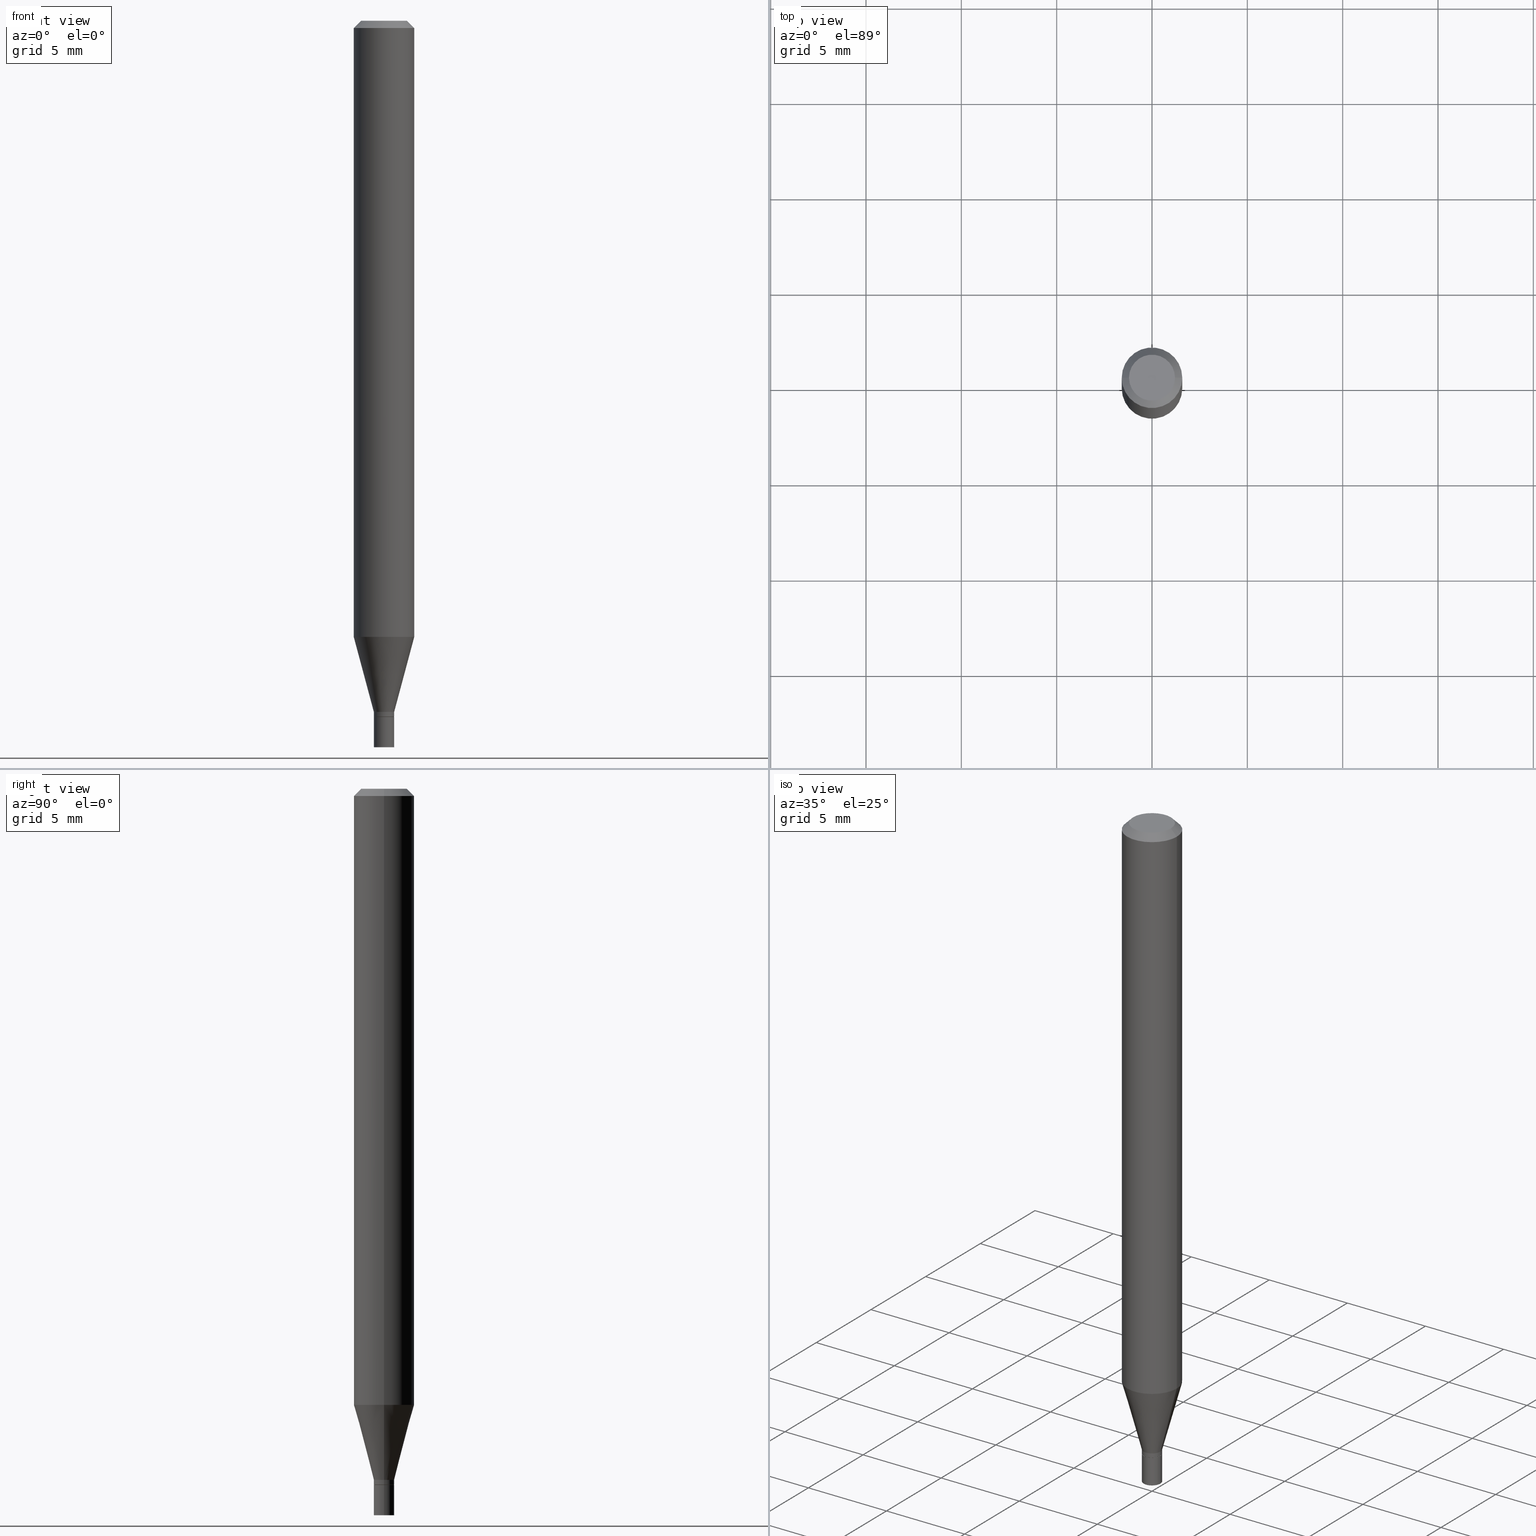
[diagram: canonical four-view strip — front | top / right | iso, engineering-drawing reading convention]
A machine part, canonical four-view strip (front | top / right | iso — engineering-drawing reading convention). The complete STEP part file that produces these views, byte-faithful:
ISO-10303-21;
HEADER;
FILE_DESCRIPTION (( 'STEP AP203' ),
    '1' );
FILE_NAME ('02403.STEP',
    '2024-03-18T20:25:10',
    ( '' ),
    ( '' ),
    'SwSTEP 2.0',
    'SolidWorks 2023',
    '' );
FILE_SCHEMA (( 'CONFIG_CONTROL_DESIGN' ));
ENDSEC;

DATA;
#1 = DIRECTION ( 'NONE',  ( -2.445468806185136597E-29, 3.491481338843145583E-15, 1.000000000000000000 ) ) ;
#2 = DIRECTION ( 'NONE',  ( -2.445468806185136597E-29, 3.491481338843145583E-15, 1.000000000000000000 ) ) ;
#3 = DIRECTION ( 'NONE',  ( 1.000000000000000000, -6.982962677686284854E-15, 0.000000000000000000 ) ) ;
#4 = ORIENTED_EDGE ( 'NONE', *, *, #279, .F. ) ;
#5 = CARTESIAN_POINT ( 'NONE',  ( -0.02099999999999992498, -4.415311774031822362E-15, -1.427000000000000046 ) ) ;
#6 = AXIS2_PLACEMENT_3D ( 'NONE', #375, #384, #119 ) ;
#7 = DIRECTION ( 'NONE',  ( -2.445468806185136597E-29, 3.491481338843145583E-15, 1.000000000000000000 ) ) ;
#8 = APPROVAL ( #242, 'UNSPECIFIED' ) ;
#9 = APPROVAL_STATUS ( 'not_yet_approved' ) ;
#10 = CALENDAR_DATE ( 2024, 18, 3 ) ;
#11 = VERTEX_POINT ( 'NONE', #418 ) ;
#12 = COORDINATED_UNIVERSAL_TIME_OFFSET ( 5, 0, .BEHIND. ) ;
#13 = ORIENTED_EDGE ( 'NONE', *, *, #131, .F. ) ;
#14 = VECTOR ( 'NONE', #454, 39.37007874015748143 ) ;
#15 = EDGE_LOOP ( 'NONE', ( #147, #25 ) ) ;
#16 = LINE ( 'NONE', #212, #347 ) ;
#17 = DIRECTION ( 'NONE',  ( 2.445468806185136597E-29, -3.491481338843145583E-15, -1.000000000000000000 ) ) ;
#18 = DIRECTION ( 'NONE',  ( 1.000000000000000000, -6.982962677686265922E-15, 4.876176775795935793E-29 ) ) ;
#19 = ORIENTED_EDGE ( 'NONE', *, *, #42, .F. ) ;
#20 = APPROVAL ( #448, 'UNSPECIFIED' ) ;
#21 = CARTESIAN_POINT ( 'NONE',  ( 3.512915940084948815E-29, -5.015512943248179335E-15, -1.436500000000000110 ) ) ;
#22 = ADVANCED_FACE ( 'NONE', ( #155 ), #456, .T. ) ;
#23 = CARTESIAN_POINT ( 'NONE',  ( 3.512915940084948815E-29, -5.015512943248179335E-15, -1.436500000000000110 ) ) ;
#24 = ORGANIZATION ( 'UNSPECIFIED', 'UNSPECIFIED', '' ) ;
#25 = ORIENTED_EDGE ( 'NONE', *, *, #415, .T. ) ;
#26 = ORIENTED_EDGE ( 'NONE', *, *, #300, .T. ) ;
#27 = ORIENTED_EDGE ( 'NONE', *, *, #432, .F. ) ;
#28 = EDGE_CURVE ( 'NONE', #223, #11, #66, .T. ) ;
#29 = CARTESIAN_POINT ( 'NONE',  ( 3.576687321579069994E-29, -5.368277968210015545E-15, -1.500000000000000222 ) ) ;
#30 = ORIENTED_EDGE ( 'NONE', *, *, #387, .T. ) ;
#31 = DIRECTION ( 'NONE',  ( 1.000000000000000000, -6.982962677686265922E-15, 4.876176775795935793E-29 ) ) ;
#32 = DIRECTION ( 'NONE',  ( 1.000000000000000000, -6.982962677686261977E-15, 0.000000000000000000 ) ) ;
#33 = AXIS2_PLACEMENT_3D ( 'NONE', #73, #129, #31 ) ;
#34 = CARTESIAN_POINT ( 'NONE',  ( 3.489683986426190072E-29, -4.982343870529169189E-15, -1.427000000000000046 ) ) ;
#35 = AXIS2_PLACEMENT_3D ( 'NONE', #355, #284, #61 ) ;
#36 = DIRECTION ( 'NONE',  ( 1.000000000000000000, -6.982962677686261977E-15, 0.000000000000000000 ) ) ;
#37 = DATE_AND_TIME ( #353, #53 ) ;
#38 = ADVANCED_FACE ( 'NONE', ( #240 ), #350, .T. ) ;
#39 = DIRECTION ( 'NONE',  ( -2.445468806185136597E-29, 3.491481338843145583E-15, 1.000000000000000000 ) ) ;
#40 = LINE ( 'NONE', #317, #140 ) ;
#41 = LENGTH_MEASURE_WITH_UNIT ( LENGTH_MEASURE( 0.02539999999999999897 ), #430 );
#42 = EDGE_CURVE ( 'NONE', #72, #320, #435, .T. ) ;
#43 = ORIENTED_EDGE ( 'NONE', *, *, #171, .T. ) ;
#44 = DIRECTION ( 'NONE',  ( -1.000000000000000000, 6.982962677686265922E-15, -4.876176775795935793E-29 ) ) ;
#45 = AXIS2_PLACEMENT_3D ( 'NONE', #410, #445, #47 ) ;
#46 = ORIENTED_EDGE ( 'NONE', *, *, #28, .F. ) ;
#47 = DIRECTION ( 'NONE',  ( 1.000000000000000000, -6.982962677686265922E-15, 0.000000000000000000 ) ) ;
#48 = EDGE_LOOP ( 'NONE', ( #90, #273, #182, #27 ) ) ;
#49 = EDGE_CURVE ( 'NONE', #377, #144, #199, .T. ) ;
#50 = EDGE_LOOP ( 'NONE', ( #260, #238, #362, #426 ) ) ;
#51 = CC_DESIGN_PERSON_AND_ORGANIZATION_ASSIGNMENT ( #463, #241, ( #440 ) ) ;
#52 = FACE_OUTER_BOUND ( 'NONE', #263, .T. ) ;
#53 = LOCAL_TIME ( 16, 25, 10.00000000000000000, #67 ) ;
#54 = CIRCLE ( 'NONE', #363, 0.02100000000000000477 ) ;
#55 = DIRECTION ( 'NONE',  ( -2.445468806185136597E-29, 3.491481338843145583E-15, 1.000000000000000000 ) ) ;
#56 = EDGE_LOOP ( 'NONE', ( #358, #267, #296, #46 ) ) ;
#57 = EDGE_LOOP ( 'NONE', ( #152, #79, #378, #217 ) ) ;
#58 = DIRECTION ( 'NONE',  ( 1.000000000000000000, -6.982962677686265922E-15, 0.000000000000000000 ) ) ;
#59 = VERTEX_POINT ( 'NONE', #309 ) ;
#60 = FACE_OUTER_BOUND ( 'NONE', #427, .T. ) ;
#61 = DIRECTION ( 'NONE',  ( 1.000000000000000000, -6.982962677686284854E-15, 0.000000000000000000 ) ) ;
#62 = PRODUCT ( '02403', '02403', '', ( #285 ) ) ;
#63 = CC_DESIGN_APPROVAL ( #8, ( #185 ) ) ;
#64 = CARTESIAN_POINT ( 'NONE',  ( 0.000000000000000000, 0.000000000000000000, 0.000000000000000000 ) ) ;
#65 = ADVANCED_FACE ( 'NONE', ( #460 ), #97, .T. ) ;
#66 = CIRCLE ( 'NONE', #165, 0.02099999999999992498 ) ;
#67 = COORDINATED_UNIVERSAL_TIME_OFFSET ( 5, 0, .BEHIND. ) ;
#68 = AXIS2_PLACEMENT_3D ( 'NONE', #417, #153, #302 ) ;
#69 = UNCERTAINTY_MEASURE_WITH_UNIT (LENGTH_MEASURE( 1.000000000000000082E-05 ), #462, 'distance_accuracy_value', 'NONE');
#70 = DIRECTION ( 'NONE',  ( -1.000000000000000000, 6.982962677686266711E-15, 0.000000000000000000 ) ) ;
#71 = PERSON_AND_ORGANIZATION_ROLE ( 'creator' ) ;
#72 = VERTEX_POINT ( 'NONE', #357 ) ;
#73 = CARTESIAN_POINT ( 'NONE',  ( 3.514138674488041056E-29, -5.017258683917600838E-15, -1.437000000000000055 ) ) ;
#74 = CALENDAR_DATE ( 2024, 18, 3 ) ;
#75 = VERTEX_POINT ( 'NONE', #168 ) ;
#76 = DATE_TIME_ROLE ( 'classification_date' ) ;
#77 = EDGE_LOOP ( 'NONE', ( #139, #286, #19, #13 ) ) ;
#78 = CARTESIAN_POINT ( 'NONE',  ( 1.466422162314467535E-16, 0.02099999999999498795, -1.437000000000000055 ) ) ;
#79 = ORIENTED_EDGE ( 'NONE', *, *, #161, .T. ) ;
#80 = ORIENTED_EDGE ( 'NONE', *, *, #259, .T. ) ;
#81 =( GEOMETRIC_REPRESENTATION_CONTEXT ( 3 ) GLOBAL_UNCERTAINTY_ASSIGNED_CONTEXT ( ( #69 ) ) GLOBAL_UNIT_ASSIGNED_CONTEXT ( ( #462, #177, #359 ) ) REPRESENTATION_CONTEXT ( 'NONE', 'WORKASPACE' ) );
#82 = AXIS2_PLACEMENT_3D ( 'NONE', #64, #39, #245 ) ;
#83 = FACE_OUTER_BOUND ( 'NONE', #50, .T. ) ;
#84 = CARTESIAN_POINT ( 'NONE',  ( 3.514138674488041056E-29, -5.017258683917600838E-15, -1.437000000000000055 ) ) ;
#85 = FACE_OUTER_BOUND ( 'NONE', #125, .T. ) ;
#86 = CLOSED_SHELL ( 'NONE', ( #22, #224, #444, #393, #351, #402, #65, #38, #231, #195, #150, #443 ) ) ;
#87 = EDGE_CURVE ( 'NONE', #246, #104, #54, .T. ) ;
#88 = APPROVAL_PERSON_ORGANIZATION ( #278, #8, #396 ) ;
#89 = DIRECTION ( 'NONE',  ( 1.000000000000000000, -6.982962677686262766E-15, 0.000000000000000000 ) ) ;
#90 = ORIENTED_EDGE ( 'NONE', *, *, #367, .F. ) ;
#91 = ORIENTED_EDGE ( 'NONE', *, *, #319, .T. ) ;
#92 = CARTESIAN_POINT ( 'NONE',  ( -0.02100000000000000477, 1.492139745096210730E-16, -1.032976368953530510E-30 ) ) ;
#93 = ORIENTED_EDGE ( 'NONE', *, *, #87, .T. ) ;
#94 = CONICAL_SURFACE ( 'NONE', #6, 0.02099999999999992498, 0.2617993877991504625 ) ;
#95 = AXIS2_PLACEMENT_3D ( 'NONE', #313, #169, #437 ) ;
#96 = PRODUCT_DEFINITION_SHAPE ( 'NONE', 'NONE',  #185 ) ;
#97 = CYLINDRICAL_SURFACE ( 'NONE', #82, 0.06250000000000000000 ) ;
#98 = CARTESIAN_POINT ( 'NONE',  ( 0.000000000000000000, 0.000000000000000000, 0.000000000000000000 ) ) ;
#99 = ORIENTED_EDGE ( 'NONE', *, *, #216, .T. ) ;
#100 = AXIS2_PLACEMENT_3D ( 'NONE', #84, #227, #149 ) ;
#101 = CARTESIAN_POINT ( 'NONE',  ( 3.514138674488041056E-29, -5.017258683917600838E-15, -1.437000000000000055 ) ) ;
#102 = APPROVAL_DATE_TIME ( #37, #8 ) ;
#103 = CARTESIAN_POINT ( 'NONE',  ( 0.02100000000000000477, -5.383864224496130787E-15, -1.500000000000000222 ) ) ;
#104 = VERTEX_POINT ( 'NONE', #103 ) ;
#105 = CARTESIAN_POINT ( 'NONE',  ( 3.316907271900976096E-16, 0.04749999999999999362, -2.653275547260257586E-16 ) ) ;
#106 = DIRECTION ( 'NONE',  ( 2.438088387897960049E-29, -3.491481338843145188E-15, -1.000000000000000000 ) ) ;
#107 = SECURITY_CLASSIFICATION ( '', '', #323 ) ;
#108 = DIRECTION ( 'NONE',  ( -2.445468806185136597E-29, 3.491481338843145583E-15, 1.000000000000000000 ) ) ;
#109 = EDGE_CURVE ( 'NONE', #144, #186, #291, .T. ) ;
#110 = LINE ( 'NONE', #178, #196 ) ;
#111 = DIRECTION ( 'NONE',  ( -2.445468806185136877E-29, 3.491481338843145188E-15, 1.000000000000000000 ) ) ;
#112 = APPROVAL_PERSON_ORGANIZATION ( #292, #20, #137 ) ;
#113 = CIRCLE ( 'NONE', #386, 0.04749999999999999362 ) ;
#114 = VERTEX_POINT ( 'NONE', #405 ) ;
#115 = LINE ( 'NONE', #194, #288 ) ;
#116 = DIRECTION ( 'NONE',  ( -2.438088387897960049E-29, 3.491481338843145188E-15, 1.000000000000000000 ) ) ;
#117 = CYLINDRICAL_SURFACE ( 'NONE', #395, 0.02099999999999992498 ) ;
#118 = FACE_OUTER_BOUND ( 'NONE', #77, .T. ) ;
#119 = DIRECTION ( 'NONE',  ( 1.000000000000000000, -6.982962677686265922E-15, 0.000000000000000000 ) ) ;
#120 = CARTESIAN_POINT ( 'NONE',  ( 0.000000000000000000, 0.000000000000000000, 0.000000000000000000 ) ) ;
#121 = AXIS2_PLACEMENT_3D ( 'NONE', #78, #250, #44 ) ;
#122 = VECTOR ( 'NONE', #372, 39.37007874015748143 ) ;
#123 = CARTESIAN_POINT ( 'NONE',  ( 0.06250000000000000000, -4.811533449433679005E-16, -0.01499999999999999944 ) ) ;
#124 = EDGE_LOOP ( 'NONE', ( #428, #422 ) ) ;
#125 = EDGE_LOOP ( 'NONE', ( #4, #431, #99, #187 ) ) ;
#126 = APPROVAL ( #9, 'UNSPECIFIED' ) ;
#127 = CARTESIAN_POINT ( 'NONE',  ( 3.514138674488041056E-29, -5.017258683917600838E-15, -1.437000000000000055 ) ) ;
#128 = ADVANCED_FACE ( 'NONE', ( #294 ), #262, .F. ) ;
#129 = DIRECTION ( 'NONE',  ( -2.438088387897960049E-29, 3.491481338843145188E-15, 1.000000000000000000 ) ) ;
#130 = APPLICATION_PROTOCOL_DEFINITION ( 'international standard', 'config_control_design', 1994, #334 ) ;
#131 = EDGE_CURVE ( 'NONE', #104, #72, #333, .T. ) ;
#132 = DIRECTION ( 'NONE',  ( 1.000000000000000000, -6.982962677686261977E-15, 0.000000000000000000 ) ) ;
#133 = DIRECTION ( 'NONE',  ( 2.445468806185136597E-29, -3.491481338843145583E-15, -1.000000000000000000 ) ) ;
#134 = LOCAL_TIME ( 16, 25, 10.00000000000000000, #12 ) ;
#135 = AXIS2_PLACEMENT_3D ( 'NONE', #120, #270, #424 ) ;
#136 = CARTESIAN_POINT ( 'NONE',  ( 0.06250000000000000000, -4.364351673553916694E-16, 3.047610484872459871E-30 ) ) ;
#137 = APPROVAL_ROLE ( '' ) ;
#138 = ORIENTED_EDGE ( 'NONE', *, *, #374, .T. ) ;
#139 = ORIENTED_EDGE ( 'NONE', *, *, #340, .T. ) ;
#140 = VECTOR ( 'NONE', #277, 39.37007874015748854 ) ;
#141 = ADVANCED_FACE ( 'NONE', ( #118 ), #383, .T. ) ;
#142 = CARTESIAN_POINT ( 'NONE',  ( -0.02100000000000000477, -4.978026371581538336E-15, -1.500000000000000222 ) ) ;
#143 = CARTESIAN_POINT ( 'NONE',  ( -0.02099999999999992498, -4.866298968738558952E-15, -1.436500000000000110 ) ) ;
#144 = VERTEX_POINT ( 'NONE', #446 ) ;
#145 = DIRECTION ( 'NONE',  ( 1.000000000000000000, -6.982962677686265922E-15, 0.000000000000000000 ) ) ;
#146 = EDGE_CURVE ( 'NONE', #246, #320, #308, .T. ) ;
#147 = ORIENTED_EDGE ( 'NONE', *, *, #42, .T. ) ;
#148 = VECTOR ( 'NONE', #151, 39.37007874015748143 ) ;
#149 = DIRECTION ( 'NONE',  ( 1.000000000000000000, -6.982962677686284854E-15, 0.000000000000000000 ) ) ;
#150 = ADVANCED_FACE ( 'NONE', ( #385 ), #184, .T. ) ;
#151 = DIRECTION ( 'NONE',  ( -2.445468806185136877E-29, 3.491481338843145188E-15, 1.000000000000000000 ) ) ;
#152 = ORIENTED_EDGE ( 'NONE', *, *, #49, .F. ) ;
#153 = DIRECTION ( 'NONE',  ( -2.445468806185136597E-29, 3.491481338843145583E-15, 1.000000000000000000 ) ) ;
#154 = DATE_AND_TIME ( #221, #134 ) ;
#155 = FACE_OUTER_BOUND ( 'NONE', #316, .T. ) ;
#156 = DIMENSIONAL_EXPONENTS ( 1.000000000000000000, 0.000000000000000000, 0.000000000000000000, 0.000000000000000000, 0.000000000000000000, 0.000000000000000000, 0.000000000000000000 ) ;
#157 = FACE_OUTER_BOUND ( 'NONE', #394, .T. ) ;
#158 = EDGE_LOOP ( 'NONE', ( #304, #93, #442, #433 ) ) ;
#159 = APPROVAL_PERSON_ORGANIZATION ( #360, #126, #345 ) ;
#160 = VERTEX_POINT ( 'NONE', #205 ) ;
#161 = EDGE_CURVE ( 'NONE', #377, #160, #318, .T. ) ;
#162 = DIRECTION ( 'NONE',  ( -2.445468806185136877E-29, 3.491481338843145188E-15, 1.000000000000000000 ) ) ;
#163 = DIRECTION ( 'NONE',  ( 1.000000000000000000, 0.000000000000000000, 0.000000000000000000 ) ) ;
#164 = CIRCLE ( 'NONE', #45, 0.02099999999999992498 ) ;
#165 = AXIS2_PLACEMENT_3D ( 'NONE', #34, #352, #461 ) ;
#166 = FACE_OUTER_BOUND ( 'NONE', #124, .T. ) ;
#167 = PERSON_AND_ORGANIZATION ( #213, #24 ) ;
#168 = CARTESIAN_POINT ( 'NONE',  ( 0.02050000000000000086, -5.160409418810168864E-15, -1.437000000000000055 ) ) ;
#169 = DIRECTION ( 'NONE',  ( -2.445468806185136597E-29, 3.491481338843145583E-15, 1.000000000000000000 ) ) ;
#170 = ORIENTED_EDGE ( 'NONE', *, *, #235, .F. ) ;
#171 = EDGE_CURVE ( 'NONE', #75, #466, #191, .T. ) ;
#172 = ORIENTED_EDGE ( 'NONE', *, *, #300, .F. ) ;
#173 = AXIS2_PLACEMENT_3D ( 'NONE', #257, #215, #255 ) ;
#174 = CARTESIAN_POINT ( 'NONE',  ( 3.668203209277705088E-31, -5.237222008264718399E-17, -0.01499999999999999944 ) ) ;
#175 = FACE_OUTER_BOUND ( 'NONE', #188, .T. ) ;
#176 = AXIS2_PLACEMENT_3D ( 'NONE', #321, #7, #389 ) ;
#177 =( NAMED_UNIT ( * ) PLANE_ANGLE_UNIT ( ) SI_UNIT ( $, .RADIAN. ) );
#178 = CARTESIAN_POINT ( 'NONE',  ( -0.02099999999999992498, 1.492139745096205060E-16, -1.032976368953526656E-30 ) ) ;
#179 = ADVANCED_FACE ( 'NONE', ( #280 ), #239, .T. ) ;
#180 = EDGE_CURVE ( 'NONE', #59, #310, #113, .T. ) ;
#181 = PERSON_AND_ORGANIZATION ( #213, #24 ) ;
#182 = ORIENTED_EDGE ( 'NONE', *, *, #361, .T. ) ;
#183 = AXIS2_PLACEMENT_3D ( 'NONE', #23, #305, #458 ) ;
#184 = CONICAL_SURFACE ( 'NONE', #307, 0.02050000000000000086, 0.7853981633974739252 ) ;
#185 = PRODUCT_DEFINITION ( 'UNKNOWN', '', #440, #331 ) ;
#186 = VERTEX_POINT ( 'NONE', #202 ) ;
#187 = ORIENTED_EDGE ( 'NONE', *, *, #161, .F. ) ;
#188 = EDGE_LOOP ( 'NONE', ( #43, #232, #226, #338 ) ) ;
#189 = LINE ( 'NONE', #364, #434 ) ;
#190 = CYLINDRICAL_SURFACE ( 'NONE', #269, 0.06250000000000000000 ) ;
#191 = CIRCLE ( 'NONE', #244, 0.02050000000000000086 ) ;
#192 = DIRECTION ( 'NONE',  ( -2.445468806185136597E-29, 3.491481338843145583E-15, 1.000000000000000000 ) ) ;
#193 = CARTESIAN_POINT ( 'NONE',  ( 0.02100000000000000477, -1.466422162314116246E-16, 1.023997122917146650E-30 ) ) ;
#194 = CARTESIAN_POINT ( 'NONE',  ( 0.02099999999999992498, -1.466422162314110822E-16, 1.023997122917142971E-30 ) ) ;
#195 = ADVANCED_FACE ( 'NONE', ( #166 ), #401, .F. ) ;
#196 = VECTOR ( 'NONE', #324, 39.37007874015748143 ) ;
#197 = EDGE_CURVE ( 'NONE', #466, #75, #450, .T. ) ;
#198 = PLANE ( 'NONE',  #381 ) ;
#199 = LINE ( 'NONE', #343, #406 ) ;
#200 = CARTESIAN_POINT ( 'NONE',  ( 0.000000000000000000, 0.000000000000000000, 0.000000000000000000 ) ) ;
#201 = DATE_TIME_ROLE ( 'creation_date' ) ;
#202 = CARTESIAN_POINT ( 'NONE',  ( 0.06250000000000000000, -4.888073874380388472E-16, -0.01499999999999999944 ) ) ;
#203 = AXIS2_PLACEMENT_3D ( 'NONE', #264, #225, #89 ) ;
#204 = CIRCLE ( 'NONE', #68, 0.06250000000000000000 ) ;
#205 = CARTESIAN_POINT ( 'NONE',  ( 0.06250000000000000000, -4.878018029249550992E-15, -1.272119891485891996 ) ) ;
#206 = DIRECTION ( 'NONE',  ( -2.445468806185136597E-29, 3.491481338843145583E-15, 1.000000000000000000 ) ) ;
#207 = ORIENTED_EDGE ( 'NONE', *, *, #87, .F. ) ;
#208 = EDGE_LOOP ( 'NONE', ( #413, #207 ) ) ;
#209 = ORIENTED_EDGE ( 'NONE', *, *, #368, .F. ) ;
#210 = DATE_AND_TIME ( #74, #419 ) ;
#211 = DIRECTION ( 'NONE',  ( -2.445468806185136597E-29, 3.491481338843145583E-15, 1.000000000000000000 ) ) ;
#212 = CARTESIAN_POINT ( 'NONE',  ( -0.02099999999999992498, -4.833129896019548018E-15, -1.427000000000000046 ) ) ;
#213 = PERSON ( 'UNSPECIFIED', 'UNSPECIFIED', 'UNSPECIFIED', ('UNSPECIFIED'), ('UNSPECIFIED'), ('UNSPECIFIED') ) ;
#214 = FACE_OUTER_BOUND ( 'NONE', #15, .T. ) ;
#215 = DIRECTION ( 'NONE',  ( -2.445468806185136597E-29, 3.491481338843145583E-15, 1.000000000000000000 ) ) ;
#216 = EDGE_CURVE ( 'NONE', #11, #160, #40, .T. ) ;
#217 = ORIENTED_EDGE ( 'NONE', *, *, #109, .F. ) ;
#218 = CARTESIAN_POINT ( 'NONE',  ( -0.06250000000000000000, 3.840629472727444916E-16, -0.01499999999999999944 ) ) ;
#219 = AXIS2_PLACEMENT_3D ( 'NONE', #21, #380, #58 ) ;
#220 = AXIS2_PLACEMENT_3D ( 'NONE', #29, #116, #18 ) ;
#221 = CALENDAR_DATE ( 2024, 18, 3 ) ;
#222 = CARTESIAN_POINT ( 'NONE',  ( 3.489683986426190072E-29, -4.982343870529169189E-15, -1.427000000000000046 ) ) ;
#223 = VERTEX_POINT ( 'NONE', #5 ) ;
#224 = ADVANCED_FACE ( 'NONE', ( #175 ), #312, .T. ) ;
#225 = DIRECTION ( 'NONE',  ( -2.445468806185136597E-29, 3.491481338843145583E-15, 1.000000000000000000 ) ) ;
#226 = ORIENTED_EDGE ( 'NONE', *, *, #457, .F. ) ;
#227 = DIRECTION ( 'NONE',  ( -2.445468806185136597E-29, 3.491481338843145583E-15, 1.000000000000000000 ) ) ;
#228 = AXIS2_PLACEMENT_3D ( 'NONE', #332, #17, #336 ) ;
#229 = CARTESIAN_POINT ( 'NONE',  ( 0.000000000000000000, 0.000000000000000000, 0.000000000000000000 ) ) ;
#230 = CARTESIAN_POINT ( 'NONE',  ( 0.000000000000000000, 0.000000000000000000, 0.000000000000000000 ) ) ;
#231 = ADVANCED_FACE ( 'NONE', ( #60 ), #198, .F. ) ;
#232 = ORIENTED_EDGE ( 'NONE', *, *, #367, .T. ) ;
#233 = ORIENTED_EDGE ( 'NONE', *, *, #180, .T. ) ;
#234 = DIRECTION ( 'NONE',  ( -2.445468806185136877E-29, 3.491481338843145188E-15, 1.000000000000000000 ) ) ;
#235 = EDGE_CURVE ( 'NONE', #160, #186, #407, .T. ) ;
#236 = CARTESIAN_POINT ( 'NONE',  ( 4.865611903635008365E-45, -6.946804277620623666E-31, -1.989643822619527736E-16 ) ) ;
#237 = DATE_AND_TIME ( #429, #283 ) ;
#238 = ORIENTED_EDGE ( 'NONE', *, *, #279, .T. ) ;
#239 = CYLINDRICAL_SURFACE ( 'NONE', #251, 0.02100000000000000477 ) ;
#240 = FACE_OUTER_BOUND ( 'NONE', #281, .T. ) ;
#241 = PERSON_AND_ORGANIZATION_ROLE ( 'creator' ) ;
#242 = APPROVAL_STATUS ( 'not_yet_approved' ) ;
#243 = CONICAL_SURFACE ( 'NONE', #423, 0.02099999999999992498, 0.2617993877991504625 ) ;
#244 = AXIS2_PLACEMENT_3D ( 'NONE', #127, #314, #32 ) ;
#245 = DIRECTION ( 'NONE',  ( 1.000000000000000000, -6.982962677686266711E-15, 4.876176775795935793E-29 ) ) ;
#246 = VERTEX_POINT ( 'NONE', #142 ) ;
#247 = ORIENTED_EDGE ( 'NONE', *, *, #303, .F. ) ;
#248 = ORIENTED_EDGE ( 'NONE', *, *, #457, .T. ) ;
#249 = CIRCLE ( 'NONE', #203, 0.06250000000000000000 ) ;
#250 = DIRECTION ( 'NONE',  ( 2.438088387897960049E-29, -3.491481338843145188E-15, -1.000000000000000000 ) ) ;
#251 = AXIS2_PLACEMENT_3D ( 'NONE', #98, #464, #354 ) ;
#252 = ADVANCED_FACE ( 'NONE', ( #214 ), #365, .F. ) ;
#253 = DIRECTION ( 'NONE',  ( 1.000000000000000000, -6.982962677686284854E-15, 0.000000000000000000 ) ) ;
#254 = PRODUCT_RELATED_PRODUCT_CATEGORY ( 'detail', '', ( #62 ) ) ;
#255 = DIRECTION ( 'NONE',  ( 1.000000000000000000, -6.982962677686267499E-15, 4.852736867747366768E-29 ) ) ;
#256 = DATE_AND_TIME ( #10, #337 ) ;
#257 = CARTESIAN_POINT ( 'NONE',  ( 4.865611903635008365E-45, -6.946804277620623666E-31, -1.989643822619527736E-16 ) ) ;
#258 = CIRCLE ( 'NONE', #327, 0.02100000000000000477 ) ;
#259 = EDGE_CURVE ( 'NONE', #329, #223, #110, .T. ) ;
#260 = ORIENTED_EDGE ( 'NONE', *, *, #303, .T. ) ;
#261 = CLOSED_SHELL ( 'NONE', ( #141, #128, #179, #252 ) ) ;
#262 = PLANE ( 'NONE',  #220 ) ;
#263 = EDGE_LOOP ( 'NONE', ( #408, #138, #282, #425 ) ) ;
#264 = CARTESIAN_POINT ( 'NONE',  ( 3.110929512356370285E-29, -4.441582861894159323E-15, -1.272119891485891996 ) ) ;
#265 = CC_DESIGN_DATE_AND_TIME_ASSIGNMENT ( #256, #76, ( #107 ) ) ;
#266 = CARTESIAN_POINT ( 'NONE',  ( 0.000000000000000000, 0.000000000000000000, 0.000000000000000000 ) ) ;
#267 = ORIENTED_EDGE ( 'NONE', *, *, #432, .T. ) ;
#268 = LINE ( 'NONE', #123, #14 ) ;
#269 = AXIS2_PLACEMENT_3D ( 'NONE', #230, #192, #414 ) ;
#270 = DIRECTION ( 'NONE',  ( -2.445468806185136597E-29, 3.491481338843145583E-15, 1.000000000000000000 ) ) ;
#271 = CIRCLE ( 'NONE', #183, 0.02099999999999992498 ) ;
#272 = CC_DESIGN_PERSON_AND_ORGANIZATION_ASSIGNMENT ( #167, #465, ( #62 ) ) ;
#273 = ORIENTED_EDGE ( 'NONE', *, *, #197, .T. ) ;
#274 = COORDINATED_UNIVERSAL_TIME_OFFSET ( 5, 0, .BEHIND. ) ;
#275 = AXIS2_PLACEMENT_3D ( 'NONE', #315, #133, #70 ) ;
#276 = CARTESIAN_POINT ( 'NONE',  ( 3.668203209277704895E-29, -5.237222008264718177E-15, -1.500000000000000222 ) ) ;
#277 = DIRECTION ( 'NONE',  ( 0.2588190451025217387, 1.565188264969619207E-15, 0.9659258262890679791 ) ) ;
#278 = PERSON_AND_ORGANIZATION ( #213, #24 ) ;
#279 = EDGE_CURVE ( 'NONE', #223, #377, #16, .T. ) ;
#280 = FACE_OUTER_BOUND ( 'NONE', #158, .T. ) ;
#281 = EDGE_LOOP ( 'NONE', ( #356, #172, #91, #392 ) ) ;
#282 = ORIENTED_EDGE ( 'NONE', *, *, #452, .T. ) ;
#283 = LOCAL_TIME ( 16, 25, 10.00000000000000000, #274 ) ;
#284 = DIRECTION ( 'NONE',  ( -2.445468806185136597E-29, 3.491481338843145583E-15, 1.000000000000000000 ) ) ;
#285 = MECHANICAL_CONTEXT ( 'NONE', #436, 'mechanical' ) ;
#286 = ORIENTED_EDGE ( 'NONE', *, *, #146, .T. ) ;
#287 = CARTESIAN_POINT ( 'NONE',  ( 3.668203209277704895E-29, -5.237222008264718177E-15, -1.500000000000000222 ) ) ;
#288 = VECTOR ( 'NONE', #420, 39.37007874015748143 ) ;
#289 = VECTOR ( 'NONE', #234, 39.37007874015748143 ) ;
#290 = DIRECTION ( 'NONE',  ( -0.2588190451025217387, 5.211531920934551042E-15, 0.9659258262890679791 ) ) ;
#291 = CIRCLE ( 'NONE', #339, 0.06250000000000000000 ) ;
#292 = PERSON_AND_ORGANIZATION ( #213, #24 ) ;
#293 = CARTESIAN_POINT ( 'NONE',  ( -0.04749999999999999362, 3.578768372314206562E-16, -1.989643822619551895E-16 ) ) ;
#294 = FACE_OUTER_BOUND ( 'NONE', #208, .T. ) ;
#295 = CIRCLE ( 'NONE', #173, 0.04749999999999999362 ) ;
#296 = ORIENTED_EDGE ( 'NONE', *, *, #368, .T. ) ;
#297 = CC_DESIGN_DATE_AND_TIME_ASSIGNMENT ( #210, #201, ( #185 ) ) ;
#298 = AXIS2_PLACEMENT_3D ( 'NONE', #229, #206, #348 ) ;
#299 = CARTESIAN_POINT ( 'NONE',  ( -0.06250000000000000000, -3.997493652044096706E-15, -1.272119891485891996 ) ) ;
#300 = EDGE_CURVE ( 'NONE', #310, #59, #295, .T. ) ;
#301 = ORIENTED_EDGE ( 'NONE', *, *, #49, .T. ) ;
#302 = DIRECTION ( 'NONE',  ( 1.000000000000000000, -6.982962677686266711E-15, 0.000000000000000000 ) ) ;
#303 = EDGE_CURVE ( 'NONE', #11, #223, #164, .T. ) ;
#304 = ORIENTED_EDGE ( 'NONE', *, *, #146, .F. ) ;
#305 = DIRECTION ( 'NONE',  ( -2.445468806185136597E-29, 3.491481338843145583E-15, 1.000000000000000000 ) ) ;
#306 = VECTOR ( 'NONE', #451, 39.37007874015748143 ) ;
#307 = AXIS2_PLACEMENT_3D ( 'NONE', #341, #376, #36 ) ;
#308 = LINE ( 'NONE', #92, #289 ) ;
#309 = CARTESIAN_POINT ( 'NONE',  ( 0.04749999999999999362, -4.035134999187581581E-16, -1.989643822619502098E-16 ) ) ;
#310 = VERTEX_POINT ( 'NONE', #293 ) ;
#311 = APPROVAL_DATE_TIME ( #237, #126 ) ;
#312 = CONICAL_SURFACE ( 'NONE', #176, 0.02050000000000000086, 0.7853981633974739252 ) ;
#313 = CARTESIAN_POINT ( 'NONE',  ( 3.110929512356370285E-29, -4.441582861894159323E-15, -1.272119891485891996 ) ) ;
#314 = DIRECTION ( 'NONE',  ( -2.445468806185136597E-29, 3.491481338843145583E-15, 1.000000000000000000 ) ) ;
#315 = CARTESIAN_POINT ( 'NONE',  ( 3.668203209277705088E-31, -5.237222008264718399E-17, -0.01499999999999999944 ) ) ;
#316 = EDGE_LOOP ( 'NONE', ( #248, #80, #247, #209 ) ) ;
#317 = CARTESIAN_POINT ( 'NONE',  ( 0.02099999999999992498, -5.128986086760580222E-15, -1.427000000000000046 ) ) ;
#318 = CIRCLE ( 'NONE', #95, 0.06250000000000000000 ) ;
#319 = EDGE_CURVE ( 'NONE', #310, #144, #328, .T. ) ;
#320 = VERTEX_POINT ( 'NONE', #412 ) ;
#321 = CARTESIAN_POINT ( 'NONE',  ( 3.514138674488041056E-29, -5.017258683917600838E-15, -1.437000000000000055 ) ) ;
#322 = LINE ( 'NONE', #330, #306 ) ;
#323 = SECURITY_CLASSIFICATION_LEVEL ( 'unclassified' ) ;
#324 = DIRECTION ( 'NONE',  ( -2.445468806185136877E-29, 3.491481338843145188E-15, 1.000000000000000000 ) ) ;
#325 = COORDINATED_UNIVERSAL_TIME_OFFSET ( 5, 0, .BEHIND. ) ;
#326 = CIRCLE ( 'NONE', #100, 0.02100000000000000477 ) ;
#327 = AXIS2_PLACEMENT_3D ( 'NONE', #287, #108, #253 ) ;
#328 = LINE ( 'NONE', #218, #122 ) ;
#329 = VERTEX_POINT ( 'NONE', #143 ) ;
#330 = CARTESIAN_POINT ( 'NONE',  ( -0.02050000000000000086, -4.871597423086780565E-15, -1.437000000000000055 ) ) ;
#331 = DESIGN_CONTEXT ( 'detailed design', #334, 'design' ) ;
#332 = CARTESIAN_POINT ( 'NONE',  ( 3.668203209277705088E-31, -5.237222008264718399E-17, -0.01499999999999999944 ) ) ;
#333 = LINE ( 'NONE', #193, #148 ) ;
#334 = APPLICATION_CONTEXT ( 'configuration controlled 3d designs of mechanical parts and assemblies' ) ;
#335 = DIRECTION ( 'NONE',  ( 1.000000000000000000, -6.982962677686266711E-15, 4.876176775795936353E-29 ) ) ;
#336 = DIRECTION ( 'NONE',  ( -1.000000000000000000, 6.982962677686266711E-15, 0.000000000000000000 ) ) ;
#337 = LOCAL_TIME ( 16, 25, 10.00000000000000000, #325 ) ;
#338 = ORIENTED_EDGE ( 'NONE', *, *, #361, .F. ) ;
#339 = AXIS2_PLACEMENT_3D ( 'NONE', #174, #211, #382 ) ;
#340 = EDGE_CURVE ( 'NONE', #104, #246, #258, .T. ) ;
#341 = CARTESIAN_POINT ( 'NONE',  ( 3.514138674488041056E-29, -5.017258683917600838E-15, -1.437000000000000055 ) ) ;
#342 = CC_DESIGN_PERSON_AND_ORGANIZATION_ASSIGNMENT ( #369, #373, ( #107 ) ) ;
#343 = CARTESIAN_POINT ( 'NONE',  ( -0.06250000000000000000, 4.440892098500626162E-16, -3.074334431409316114E-30 ) ) ;
#344 = DIRECTION ( 'NONE',  ( 0.000000000000000000, 0.000000000000000000, 1.000000000000000000 ) ) ;
#345 = APPROVAL_ROLE ( '' ) ;
#346 = DIRECTION ( 'NONE',  ( -2.445468806185136597E-29, 3.491481338843145583E-15, 1.000000000000000000 ) ) ;
#347 = VECTOR ( 'NONE', #290, 39.37007874015748854 ) ;
#348 = DIRECTION ( 'NONE',  ( 1.000000000000000000, -6.982962677686266711E-15, 4.876176775795936353E-29 ) ) ;
#349 = APPLICATION_PROTOCOL_DEFINITION ( 'international standard', 'config_control_design', 1994, #436 ) ;
#350 = CONICAL_SURFACE ( 'NONE', #275, 0.06250000000000000000, 0.7853981633974549403 ) ;
#351 = ADVANCED_FACE ( 'NONE', ( #83 ), #243, .T. ) ;
#352 = DIRECTION ( 'NONE',  ( -2.445468806185136597E-29, 3.491481338843145583E-15, 1.000000000000000000 ) ) ;
#353 = CALENDAR_DATE ( 2024, 18, 3 ) ;
#354 = DIRECTION ( 'NONE',  ( 1.000000000000000000, -6.982962677686265922E-15, 4.876176775795935232E-29 ) ) ;
#355 = CARTESIAN_POINT ( 'NONE',  ( 3.514138674488041056E-29, -5.017258683917600838E-15, -1.437000000000000055 ) ) ;
#356 = ORIENTED_EDGE ( 'NONE', *, *, #374, .F. ) ;
#357 = CARTESIAN_POINT ( 'NONE',  ( 0.02100000000000000477, -5.163900900149012660E-15, -1.437000000000000055 ) ) ;
#358 = ORIENTED_EDGE ( 'NONE', *, *, #259, .F. ) ;
#359 =( NAMED_UNIT ( * ) SI_UNIT ( $, .STERADIAN. ) SOLID_ANGLE_UNIT ( ) );
#360 = PERSON_AND_ORGANIZATION ( #213, #24 ) ;
#361 = EDGE_CURVE ( 'NONE', #75, #114, #189, .T. ) ;
#362 = ORIENTED_EDGE ( 'NONE', *, *, #387, .F. ) ;
#363 = AXIS2_PLACEMENT_3D ( 'NONE', #276, #1, #3 ) ;
#364 = CARTESIAN_POINT ( 'NONE',  ( 0.02050000000000000086, -5.160409418810168864E-15, -1.437000000000000055 ) ) ;
#365 = PLANE ( 'NONE',  #121 ) ;
#366 = DIRECTION ( 'NONE',  ( 0.7071067811865656694, -2.468850131082446387E-15, 0.7071067811865294761 ) ) ;
#367 = EDGE_CURVE ( 'NONE', #466, #329, #322, .T. ) ;
#368 = EDGE_CURVE ( 'NONE', #114, #11, #115, .T. ) ;
#369 = PERSON_AND_ORGANIZATION ( #213, #24 ) ;
#370 = AXIS2_PLACEMENT_3D ( 'NONE', #200, #344, #163 ) ;
#371 = VECTOR ( 'NONE', #111, 39.37007874015748143 ) ;
#372 = DIRECTION ( 'NONE',  ( -0.7071067811865522357, 2.468850131082306364E-15, -0.7071067811865427988 ) ) ;
#373 = PERSON_AND_ORGANIZATION_ROLE ( 'classification_officer' ) ;
#374 = EDGE_CURVE ( 'NONE', #59, #186, #268, .T. ) ;
#375 = CARTESIAN_POINT ( 'NONE',  ( 3.489683986426190072E-29, -4.982343870529169189E-15, -1.427000000000000046 ) ) ;
#376 = DIRECTION ( 'NONE',  ( -2.445468806185136597E-29, 3.491481338843145583E-15, 1.000000000000000000 ) ) ;
#377 = VERTEX_POINT ( 'NONE', #299 ) ;
#378 = ORIENTED_EDGE ( 'NONE', *, *, #235, .T. ) ;
#379 = CC_DESIGN_APPROVAL ( #126, ( #440 ) ) ;
#380 = DIRECTION ( 'NONE',  ( -2.445468806185136597E-29, 3.491481338843145583E-15, 1.000000000000000000 ) ) ;
#381 = AXIS2_PLACEMENT_3D ( 'NONE', #105, #106, #447 ) ;
#382 = DIRECTION ( 'NONE',  ( 1.000000000000000000, -6.982962677686266711E-15, 0.000000000000000000 ) ) ;
#383 = CYLINDRICAL_SURFACE ( 'NONE', #135, 0.02100000000000000477 ) ;
#384 = DIRECTION ( 'NONE',  ( -2.445468806185136597E-29, 3.491481338843145583E-15, 1.000000000000000000 ) ) ;
#385 = FACE_OUTER_BOUND ( 'NONE', #48, .T. ) ;
#386 = AXIS2_PLACEMENT_3D ( 'NONE', #236, #346, #391 ) ;
#387 = EDGE_CURVE ( 'NONE', #160, #377, #249, .T. ) ;
#388 = CC_DESIGN_PERSON_AND_ORGANIZATION_ASSIGNMENT ( #397, #71, ( #185 ) ) ;
#389 = DIRECTION ( 'NONE',  ( 1.000000000000000000, -6.982962677686261977E-15, 0.000000000000000000 ) ) ;
#390 = MANIFOLD_SOLID_BREP ( 'Body-Move/Copy2[2]', #86 ) ;
#391 = DIRECTION ( 'NONE',  ( 1.000000000000000000, -6.982962677686267499E-15, 4.852736867747366768E-29 ) ) ;
#392 = ORIENTED_EDGE ( 'NONE', *, *, #109, .T. ) ;
#393 = ADVANCED_FACE ( 'NONE', ( #157 ), #190, .T. ) ;
#394 = EDGE_LOOP ( 'NONE', ( #30, #301, #399, #170 ) ) ;
#395 = AXIS2_PLACEMENT_3D ( 'NONE', #266, #55, #335 ) ;
#396 = APPROVAL_ROLE ( '' ) ;
#397 = PERSON_AND_ORGANIZATION ( #213, #24 ) ;
#398 = CARTESIAN_POINT ( 'NONE',  ( -0.02050000000000000086, -4.868948195912669364E-15, -1.437000000000000055 ) ) ;
#399 = ORIENTED_EDGE ( 'NONE', *, *, #452, .F. ) ;
#400 = MANIFOLD_SOLID_BREP ( 'Body-Move/Copy2[1]', #261 ) ;
#401 = PLANE ( 'NONE',  #33 ) ;
#402 = ADVANCED_FACE ( 'NONE', ( #85 ), #94, .T. ) ;
#403 = COORDINATED_UNIVERSAL_TIME_OFFSET ( 5, 0, .BEHIND. ) ;
#404 = CIRCLE ( 'NONE', #219, 0.02099999999999992498 ) ;
#405 = CARTESIAN_POINT ( 'NONE',  ( 0.02099999999999992498, -5.162155159479590368E-15, -1.436500000000000110 ) ) ;
#406 = VECTOR ( 'NONE', #162, 39.37007874015748143 ) ;
#407 = LINE ( 'NONE', #136, #371 ) ;
#408 = ORIENTED_EDGE ( 'NONE', *, *, #180, .F. ) ;
#409 = SHAPE_DEFINITION_REPRESENTATION ( #96, #416 ) ;
#410 = CARTESIAN_POINT ( 'NONE',  ( 3.489683986426190072E-29, -4.982343870529169189E-15, -1.427000000000000046 ) ) ;
#411 = CC_DESIGN_SECURITY_CLASSIFICATION ( #107, ( #440 ) ) ;
#412 = CARTESIAN_POINT ( 'NONE',  ( -0.02100000000000000477, -4.978026371581538336E-15, -1.437000000000000055 ) ) ;
#413 = ORIENTED_EDGE ( 'NONE', *, *, #340, .F. ) ;
#414 = DIRECTION ( 'NONE',  ( 1.000000000000000000, -6.982962677686266711E-15, 4.876176775795935793E-29 ) ) ;
#415 = EDGE_CURVE ( 'NONE', #320, #72, #326, .T. ) ;
#416 = ADVANCED_BREP_SHAPE_REPRESENTATION ( '02403', ( #400, #390, #370 ), #81 ) ;
#417 = CARTESIAN_POINT ( 'NONE',  ( 3.668203209277705088E-31, -5.237222008264718399E-17, -0.01499999999999999944 ) ) ;
#418 = CARTESIAN_POINT ( 'NONE',  ( 0.02099999999999992498, -5.128986086760580222E-15, -1.427000000000000046 ) ) ;
#419 = LOCAL_TIME ( 16, 25, 10.00000000000000000, #403 ) ;
#420 = DIRECTION ( 'NONE',  ( -2.445468806185136877E-29, 3.491481338843145188E-15, 1.000000000000000000 ) ) ;
#421 = AXIS2_PLACEMENT_3D ( 'NONE', #101, #2, #132 ) ;
#422 = ORIENTED_EDGE ( 'NONE', *, *, #197, .F. ) ;
#423 = AXIS2_PLACEMENT_3D ( 'NONE', #222, #439, #145 ) ;
#424 = DIRECTION ( 'NONE',  ( 1.000000000000000000, -6.982962677686265922E-15, 4.876176775795935232E-29 ) ) ;
#425 = ORIENTED_EDGE ( 'NONE', *, *, #319, .F. ) ;
#426 = ORIENTED_EDGE ( 'NONE', *, *, #216, .F. ) ;
#427 = EDGE_LOOP ( 'NONE', ( #26, #233 ) ) ;
#428 = ORIENTED_EDGE ( 'NONE', *, *, #171, .F. ) ;
#429 = CALENDAR_DATE ( 2024, 18, 3 ) ;
#430 =( LENGTH_UNIT ( ) NAMED_UNIT ( * ) SI_UNIT ( $, .METRE. ) );
#431 = ORIENTED_EDGE ( 'NONE', *, *, #28, .T. ) ;
#432 = EDGE_CURVE ( 'NONE', #329, #114, #404, .T. ) ;
#433 = ORIENTED_EDGE ( 'NONE', *, *, #415, .F. ) ;
#434 = VECTOR ( 'NONE', #366, 39.37007874015748143 ) ;
#435 = CIRCLE ( 'NONE', #35, 0.02100000000000000477 ) ;
#436 = APPLICATION_CONTEXT ( 'configuration controlled 3d designs of mechanical parts and assemblies' ) ;
#437 = DIRECTION ( 'NONE',  ( 1.000000000000000000, -6.982962677686262766E-15, 0.000000000000000000 ) ) ;
#438 = CC_DESIGN_PERSON_AND_ORGANIZATION_ASSIGNMENT ( #181, #441, ( #440 ) ) ;
#439 = DIRECTION ( 'NONE',  ( -2.445468806185136597E-29, 3.491481338843145583E-15, 1.000000000000000000 ) ) ;
#440 = PRODUCT_DEFINITION_FORMATION_WITH_SPECIFIED_SOURCE ( 'ANY', '', #62, .NOT_KNOWN. ) ;
#441 = PERSON_AND_ORGANIZATION_ROLE ( 'design_supplier' ) ;
#442 = ORIENTED_EDGE ( 'NONE', *, *, #131, .T. ) ;
#443 = ADVANCED_FACE ( 'NONE', ( #453 ), #117, .T. ) ;
#444 = ADVANCED_FACE ( 'NONE', ( #52 ), #459, .T. ) ;
#445 = DIRECTION ( 'NONE',  ( -2.445468806185136597E-29, 3.491481338843145583E-15, 1.000000000000000000 ) ) ;
#446 = CARTESIAN_POINT ( 'NONE',  ( -0.06250000000000000000, -1.802888331138340782E-15, -0.01499999999999999944 ) ) ;
#447 = DIRECTION ( 'NONE',  ( -1.000000000000000000, 6.982962677686265922E-15, -4.876176775795935793E-29 ) ) ;
#448 = APPROVAL_STATUS ( 'not_yet_approved' ) ;
#449 = CC_DESIGN_APPROVAL ( #20, ( #107 ) ) ;
#450 = CIRCLE ( 'NONE', #421, 0.02050000000000000086 ) ;
#451 = DIRECTION ( 'NONE',  ( -0.7071067811865656694, 7.493145998870420424E-15, 0.7071067811865294761 ) ) ;
#452 = EDGE_CURVE ( 'NONE', #186, #144, #204, .T. ) ;
#453 = FACE_OUTER_BOUND ( 'NONE', #56, .T. ) ;
#454 = DIRECTION ( 'NONE',  ( 0.7071067811865522357, -7.319954787623271823E-15, -0.7071067811865427988 ) ) ;
#455 = APPROVAL_DATE_TIME ( #154, #20 ) ;
#456 = CYLINDRICAL_SURFACE ( 'NONE', #298, 0.02099999999999992498 ) ;
#457 = EDGE_CURVE ( 'NONE', #114, #329, #271, .T. ) ;
#458 = DIRECTION ( 'NONE',  ( 1.000000000000000000, -6.982962677686265922E-15, 0.000000000000000000 ) ) ;
#459 = CONICAL_SURFACE ( 'NONE', #228, 0.06250000000000000000, 0.7853981633974549403 ) ;
#460 = FACE_OUTER_BOUND ( 'NONE', #57, .T. ) ;
#461 = DIRECTION ( 'NONE',  ( 1.000000000000000000, -6.982962677686265922E-15, 0.000000000000000000 ) ) ;
#462 =( CONVERSION_BASED_UNIT ( 'INCH', #41 ) LENGTH_UNIT ( ) NAMED_UNIT ( #156 ) );
#463 = PERSON_AND_ORGANIZATION ( #213, #24 ) ;
#464 = DIRECTION ( 'NONE',  ( -2.445468806185136597E-29, 3.491481338843145583E-15, 1.000000000000000000 ) ) ;
#465 = PERSON_AND_ORGANIZATION_ROLE ( 'design_owner' ) ;
#466 = VERTEX_POINT ( 'NONE', #398 ) ;
ENDSEC;
END-ISO-10303-21;
